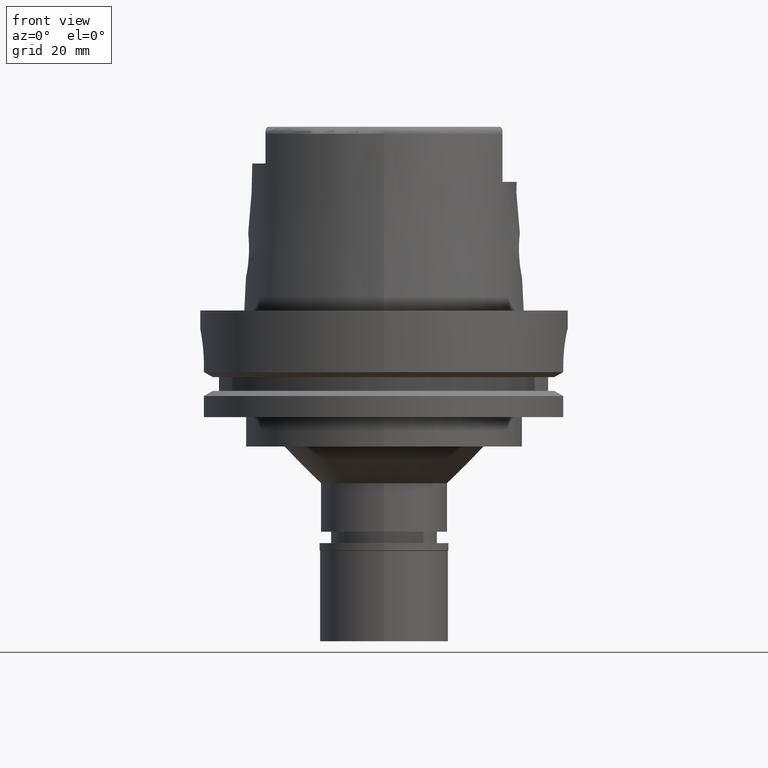
[diagram: clean part render]
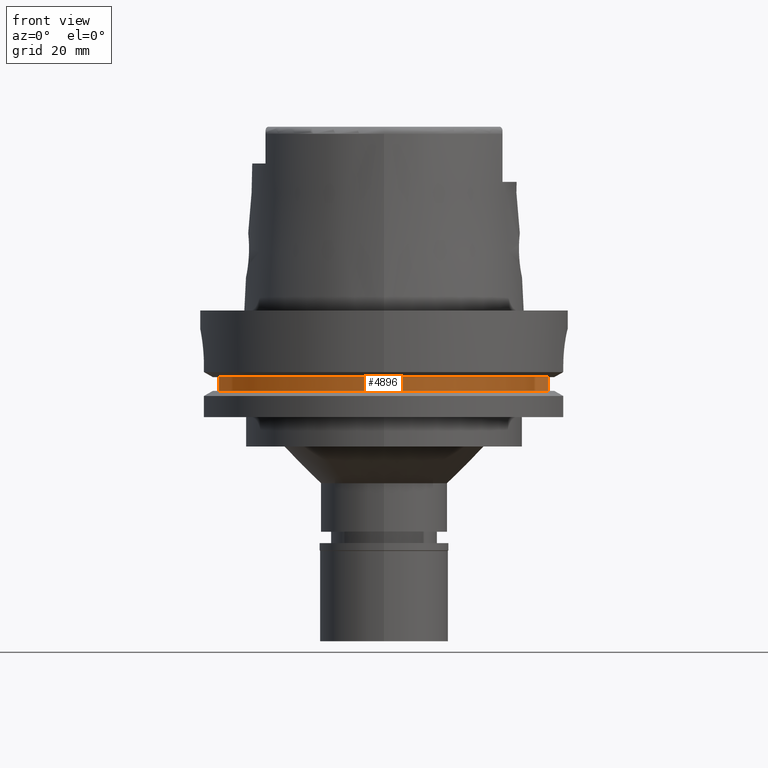
[diagram: same view with one face highlighted and labeled with its STEP entity id]
A machine part, front view. The second image highlights one B-rep face of the part: STEP entity #4896.
In plain terms, the highlighted cylindrical surface (partial cylindrical patch) has radius 46 mm, axis along (0, 0, 1).
Its self-contained STEP definition (entity closure, byte-faithful):
#116 = CARTESIAN_POINT ( 'NONE',  ( -44.89988864128999779, -10.00000000000000000, -21.87500000000000000 ) ) ;
#402 = DIRECTION ( 'NONE',  ( 0.0000000000000000000, 0.0000000000000000000, -1.000000000000000000 ) ) ;
#712 = VERTEX_POINT ( 'NONE', #2062 ) ;
#876 = CARTESIAN_POINT ( 'NONE',  ( 0.0000000000000000000, 0.0000000000000000000, -85.45000000000000284 ) ) ;
#965 = CARTESIAN_POINT ( 'NONE',  ( 0.0000000000000000000, 0.0000000000000000000, -18.12500000000000000 ) ) ;
#1021 = EDGE_CURVE ( 'NONE', #3526, #3350, #3137, .T. ) ;
#1109 = DIRECTION ( 'NONE',  ( 0.0000000000000000000, 0.0000000000000000000, 1.000000000000000000 ) ) ;
#1124 = AXIS2_PLACEMENT_3D ( 'NONE', #965, #4899, #4090 ) ;
#1204 = FACE_OUTER_BOUND ( 'NONE', #1707, .T. ) ;
#1327 = DIRECTION ( 'NONE',  ( 0.0000000000000000000, 1.000000000000000000, 0.0000000000000000000 ) ) ;
#1439 = EDGE_CURVE ( 'NONE', #3526, #712, #4097, .T. ) ;
#1707 = EDGE_LOOP ( 'NONE', ( #3614, #2030, #2118, #2947 ) ) ;
#1763 = CARTESIAN_POINT ( 'NONE',  ( -44.89988864128999779, -10.00000000000000000, -21.87500000000000000 ) ) ;
#1973 = VECTOR ( 'NONE', #3080, 1000.000000000000000 ) ;
#1978 = EDGE_CURVE ( 'NONE', #3482, #3350, #2531, .T. ) ;
#2030 = ORIENTED_EDGE ( 'NONE', *, *, #1978, .F. ) ;
#2052 = EDGE_CURVE ( 'NONE', #3482, #712, #4822, .T. ) ;
#2062 = CARTESIAN_POINT ( 'NONE',  ( -44.89988864128999779, -10.00000000000000000, -18.12500000000000000 ) ) ;
#2118 = ORIENTED_EDGE ( 'NONE', *, *, #2052, .T. ) ;
#2531 = LINE ( 'NONE', #4261, #4776 ) ;
#2947 = ORIENTED_EDGE ( 'NONE', *, *, #1439, .F. ) ;
#3080 = DIRECTION ( 'NONE',  ( 0.0000000000000000000, 0.0000000000000000000, 1.000000000000000000 ) ) ;
#3137 = CIRCLE ( 'NONE', #3674, 46.00000000000000000 ) ;
#3350 = VERTEX_POINT ( 'NONE', #4476 ) ;
#3380 = DIRECTION ( 'NONE',  ( 0.0000000000000000000, 0.0000000000000000000, 1.000000000000000000 ) ) ;
#3482 = VERTEX_POINT ( 'NONE', #4276 ) ;
#3526 = VERTEX_POINT ( 'NONE', #1763 ) ;
#3614 = ORIENTED_EDGE ( 'NONE', *, *, #1021, .T. ) ;
#3674 = AXIS2_PLACEMENT_3D ( 'NONE', #3736, #1109, #5485 ) ;
#3736 = CARTESIAN_POINT ( 'NONE',  ( 0.0000000000000000000, 0.0000000000000000000, -21.87500000000000000 ) ) ;
#3916 = CYLINDRICAL_SURFACE ( 'NONE', #5187, 46.00000000000000000 ) ;
#4090 = DIRECTION ( 'NONE',  ( 0.0000000000000000000, -1.000000000000000000, 0.0000000000000000000 ) ) ;
#4097 = LINE ( 'NONE', #116, #1973 ) ;
#4261 = CARTESIAN_POINT ( 'NONE',  ( 44.66542286825000474, -11.00000000000000000, -18.12500000000000000 ) ) ;
#4276 = CARTESIAN_POINT ( 'NONE',  ( 44.66542286825000474, -11.00000000000000000, -18.12500000000000000 ) ) ;
#4476 = CARTESIAN_POINT ( 'NONE',  ( 44.66542286825000474, -11.00000000000000000, -21.87500000000000000 ) ) ;
#4776 = VECTOR ( 'NONE', #402, 1000.000000000000000 ) ;
#4822 = CIRCLE ( 'NONE', #1124, 46.00000000000000000 ) ;
#4896 = ADVANCED_FACE ( 'NONE', ( #1204 ), #3916, .T. ) ;
#4899 = DIRECTION ( 'NONE',  ( 0.0000000000000000000, 0.0000000000000000000, -1.000000000000000000 ) ) ;
#5187 = AXIS2_PLACEMENT_3D ( 'NONE', #876, #3380, #1327 ) ;
#5485 = DIRECTION ( 'NONE',  ( -0.9760845356801660655, -0.2173913043477924967, 0.0000000000000000000 ) ) ;